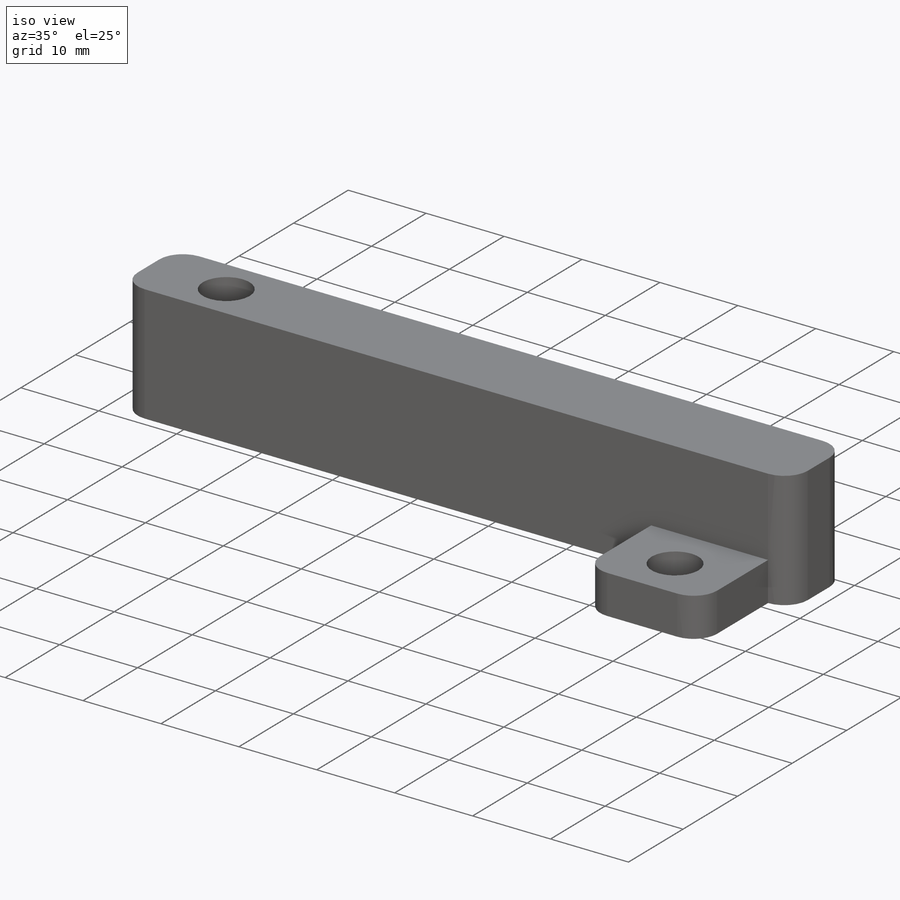
[diagram: iso view]
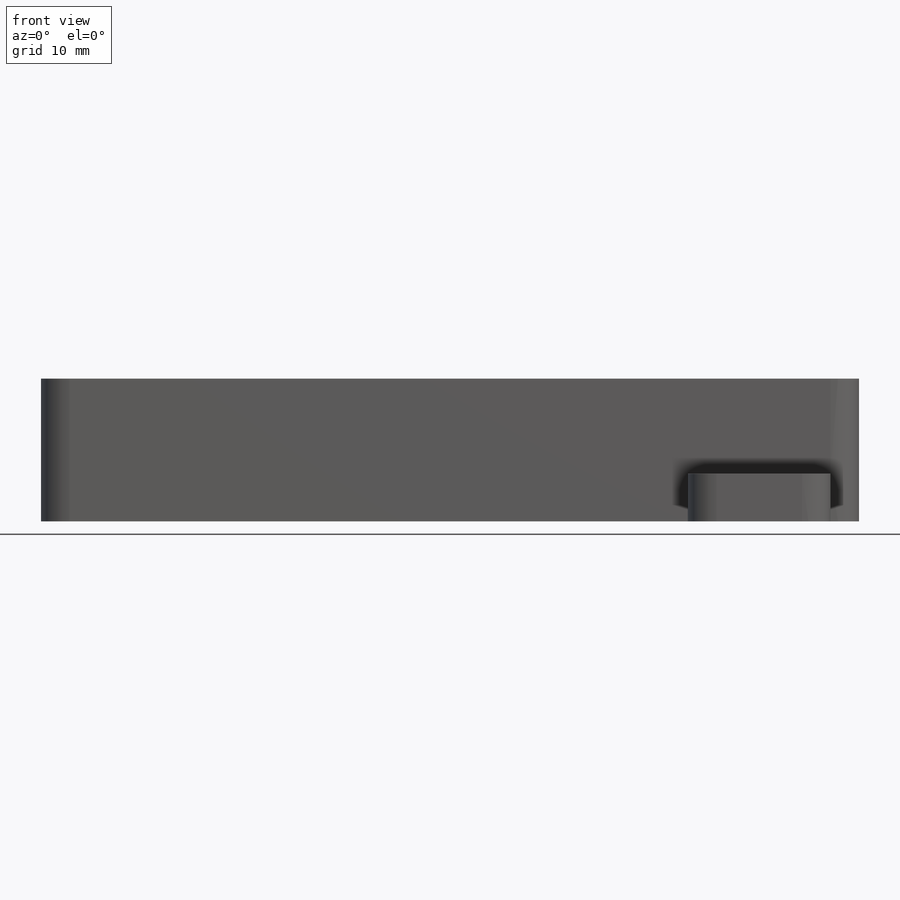
[diagram: front view]
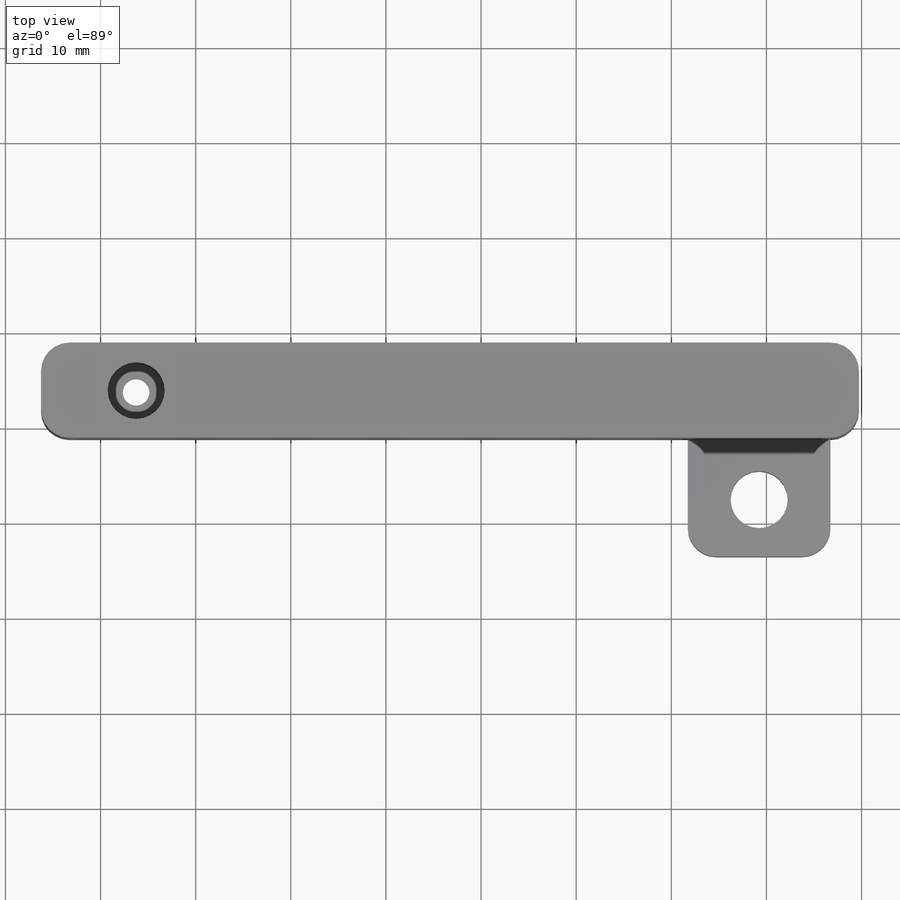
[diagram: top view]
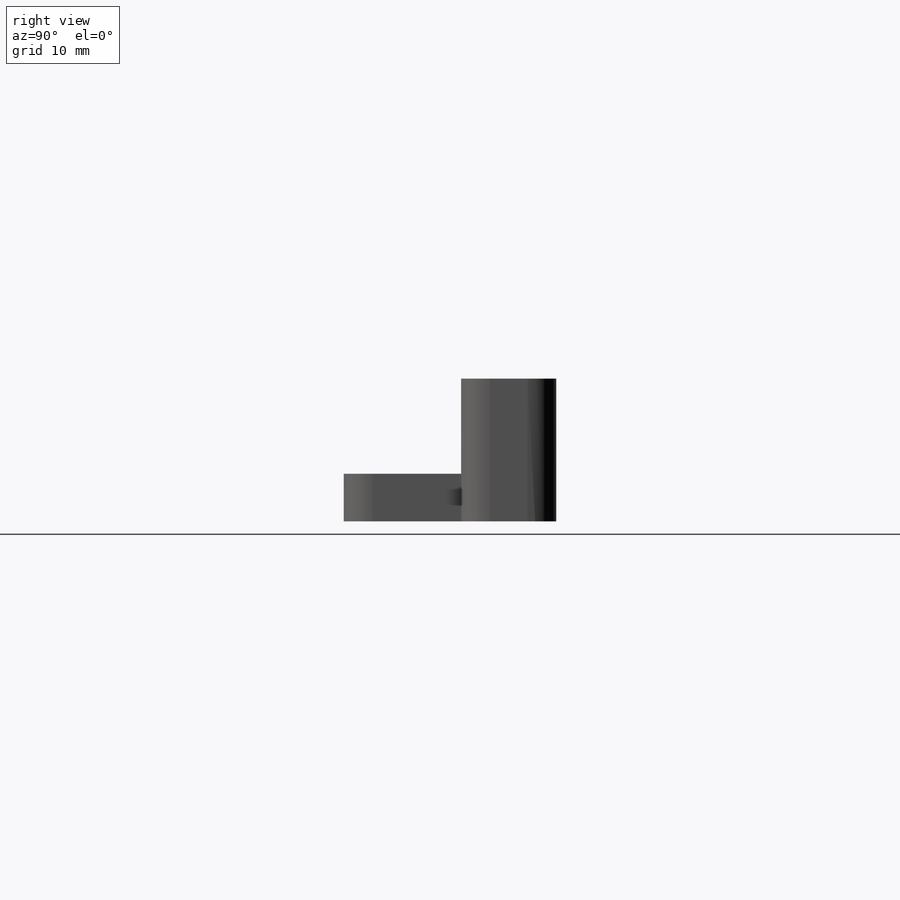
[diagram: right view]
SOLIDWORKS PART (.sldprt)
format: sldprt  version: not decoded by parser v0  size: 203,264 bytes
history: native  units: mm
features: sketch x5, cut_extrude x3, extrude x2, material x1 (+13 scaffold rows collapsed)
feature tree (24):
  scaffold x13  (default folders/planes/origin — collapsed)
  material  "Material <not specified>"
  sketch  "Sketch1"  dims[c1.D1=10.0mm c1.D4=10.0mm c2.D1=10.0mm c2.D4=3.0mm c2.D3=~2.564684mm c3.D1=3.0mm c3.D2=10.0mm c3.D3=20.0mm c4.D1=15.0mm c4.D3=7.5mm c4.D5=70.0mm c5.D3=10.0mm c5.D6=5.0mm c5.D7=5.0mm c5.D8=5.0mm c5.D9=5.0mm c5.D10=20.0mm c5.D11=7.5mm c5.D4=80.0mm]
  extrude  "Boss-Extrude1"  Depth=15mm
  sketch  "Sketch3"  dims[D1=~3.045811mm]
  cut_extrude  "Cut-Extrude2"  Depth=3mm
  sketch  "Sketch4"  dims[D1=~3.126419mm]
  cut_extrude  "Cut-Extrude3"  Depth=10mm
  sketch  "Sketch5"  dims[D2=3.0mm D1=15.0mm]
  extrude  "Boss-Extrude2"  Depth=5mm
  sketch  "Sketch7"  dims[c1.D1=~3.88271mm c1.D3=5.0mm c2.D1=6.0mm c2.D2=7.5mm]
  cut_extrude  "Cut-Extrude4"  Depth=5mm
decode coverage: 10 of 10 modeling features carry decoded parameters
note: ~ marks probable driven/reference dimensions
note: suppression state not decoded; provenance and decode notes live in map.json
